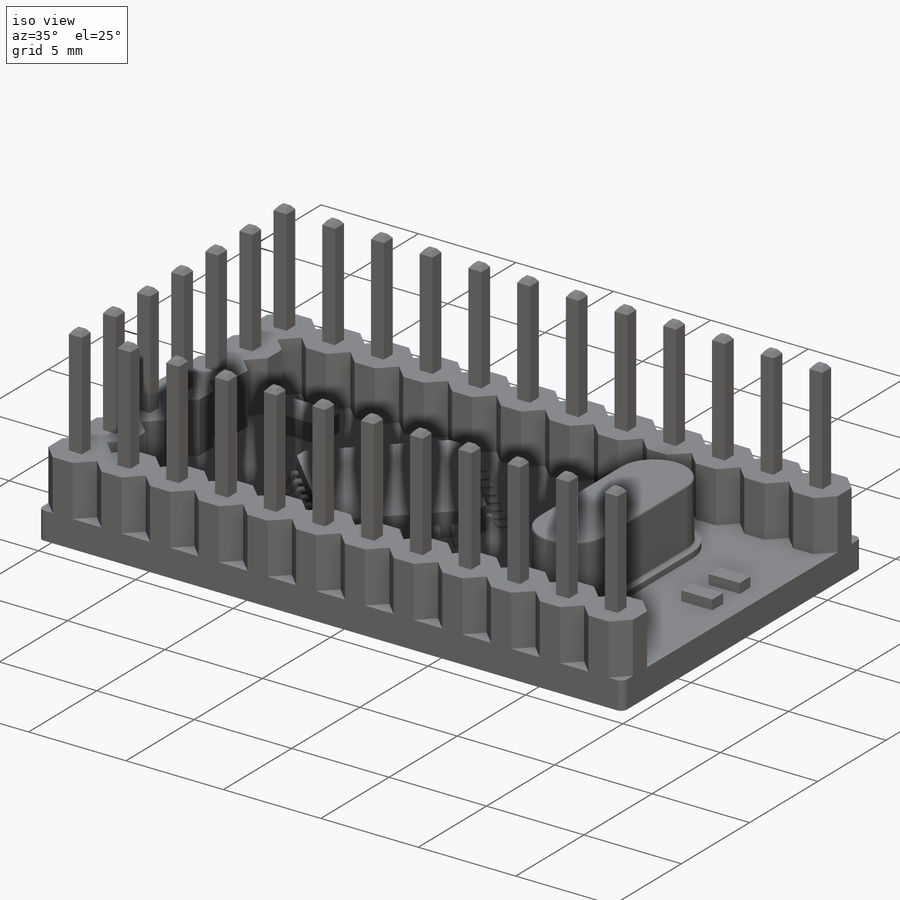
[diagram: iso view]
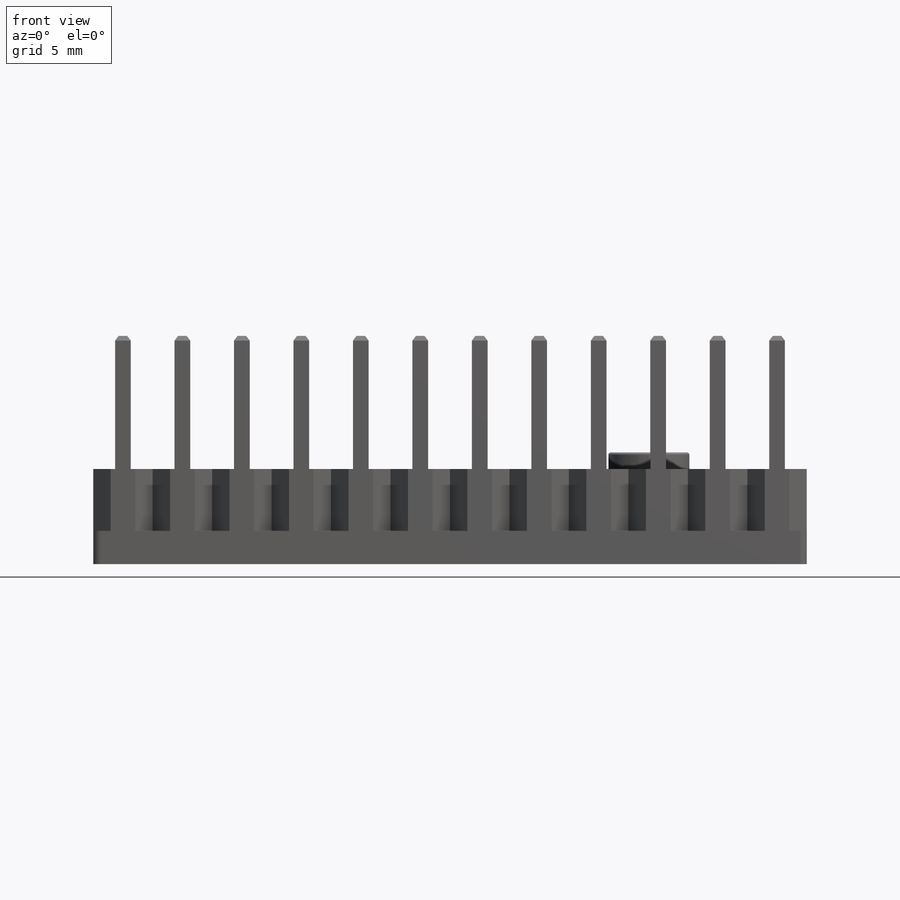
[diagram: front view]
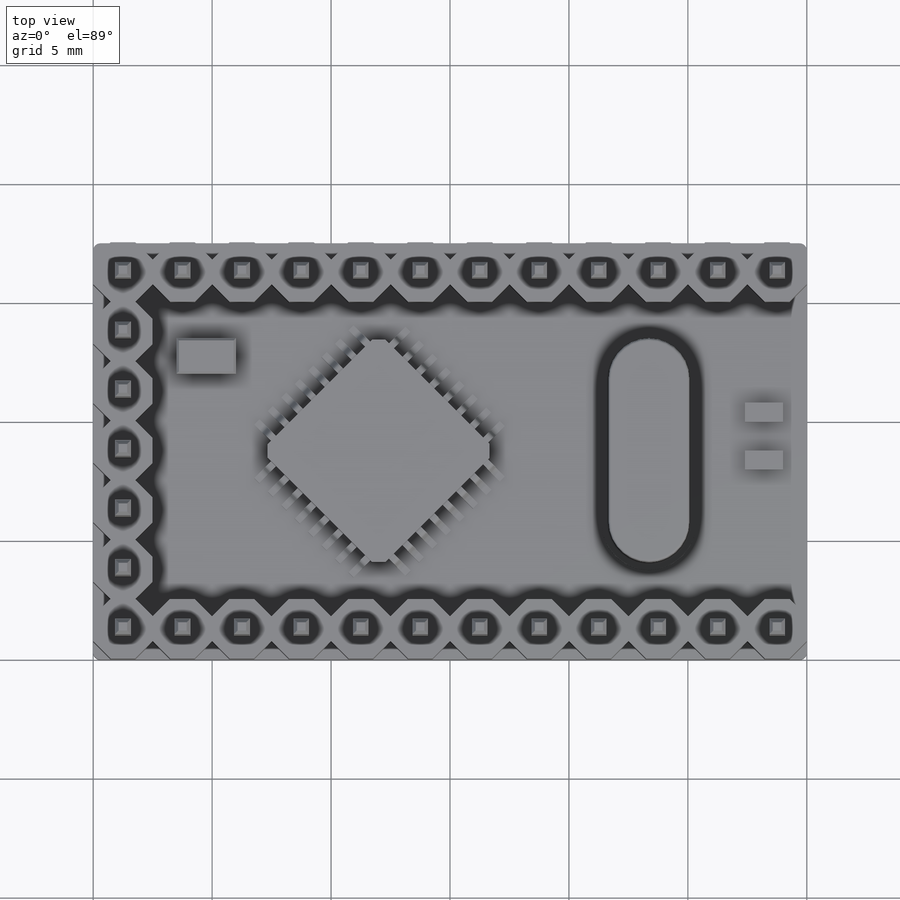
[diagram: top view]
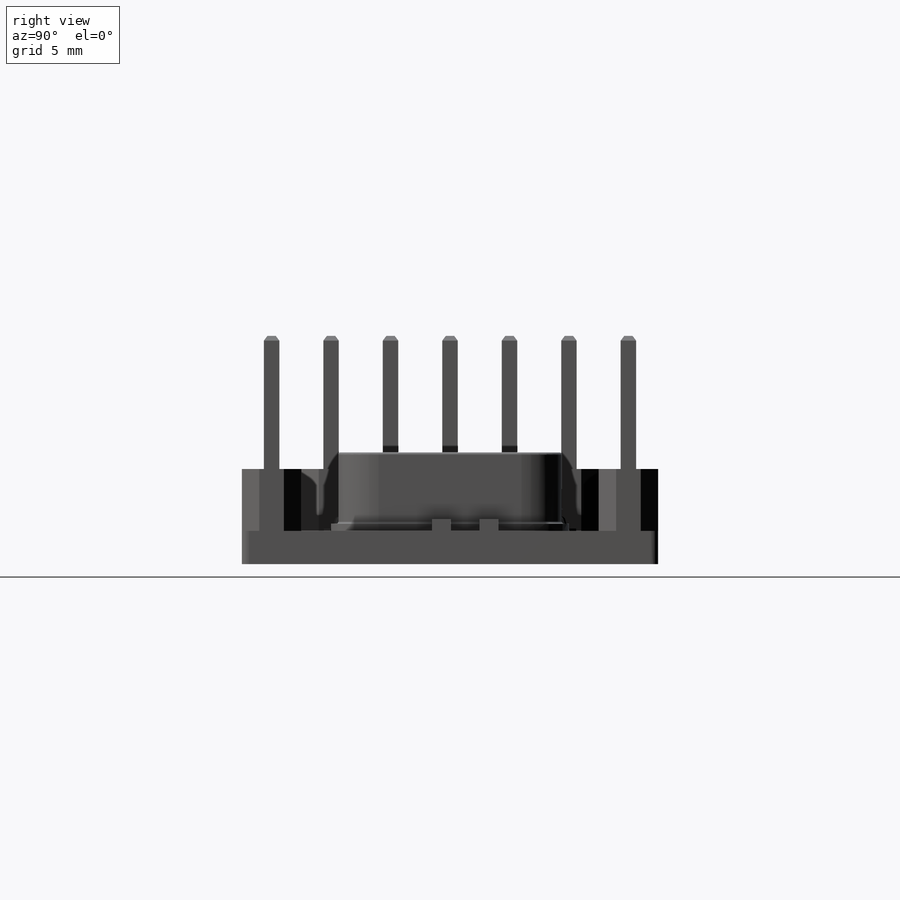
[diagram: right view]
SOLIDWORKS PART (.sldprt)
format: sldprt  version: not decoded by parser v0  size: 1,895,936 bytes
history: native  units: mm
features: sketch x12, extrude x10, plane x7, pattern_linear x4, chamfer x3, fillet x3, mirror x2, material x1 (+8 scaffold rows collapsed)
feature tree (50):
  scaffold x8  (default folders/planes/origin — collapsed)
  material  "材质 <未指定>"
  plane  "前视基准面"
  plane  "上视基准面"
  plane  "右视基准面"
  sketch  "草图1"  dims[c1.D1=~5.370779mm c1.D2=~9.074765mm c2.D1=30.0mm c2.D2=17.5mm]
  extrude  "凸台-拉伸1"  Depth=1.4mm
  sketch  "草图2"  dims[D1=~0.86903mm]
  extrude  "凸台-拉伸2"  Depth=2.6mm
  sketch  "草图4"  dims[c1.D2=2.5mm c1.D3=~0.755781mm c1.D4=~0.808536mm c2.D3=0.66mm c2.D4=0.65mm c2.D1=0.0mm]
  extrude  "凸台-拉伸3"  Depth=5.6mm
  chamfer  "倒角1"  Distance=0.2mm Angle=37deg
  pattern_linear  "阵列(线性)3"  Count1=12 Count2=2 Spacing1=2.5mm Spacing2=15mm
  sketch  "草图7"  dims[D1=~7.53355mm]
  sketch  "草图9"  dims[c1.D1=~3.677016mm c1.D2=~3.426679mm c2.D1=7.0mm c2.D2=7.0mm c2.D3=12.0mm]
  extrude  "凸台-拉伸4"  Depth=1.2mm
  chamfer  "倒角2"  Distance=0.4mm Angle=45deg
  plane  "基准面2"  Offset=0.5mm
  sketch  "草图12"  dims[D5=0.2mm D1=1.0mm D2=0.1mm D3=~0.304987mm D4=0.5mm D7=0.1mm D6=0.1mm]
  extrude  "凸台-拉伸5"  Depth=0.3mm
  pattern_linear  "阵列(线性)4"  Count1=8 Count2=1 Spacing1=0.8mm Spacing2=14.5mm
  plane  "基准面4"  Offset=0.5mm
  sketch  "草图13"  dims[D5=0.2mm D1=0.1mm D2=1.0mm D3=0.3mm D4=0.5mm D7=0.1mm D6=0.1mm]
  extrude  "凸台-拉伸6"  Depth=0.3mm
  pattern_linear  "阵列(线性)5"  Count1=8 Count2=1 Spacing1=0.8mm Spacing2=14.5mm
  plane  "基准面5"  Offset=3.5mm
  plane  "基准面6"  Offset=3.5mm
  mirror  "镜向1"
  mirror  "镜向2"
  sketch  "草图14"  dims[D2=2.0mm D1=6.0mm]
  extrude  "凸台-拉伸7"  Depth=0.3mm
  sketch  "草图15"  dims[D1=0.3mm]
  extrude  "凸台-拉伸8"  Depth=3mm
  fillet  "圆角1"  Radius=0.1mm
  fillet  "圆角2"  Radius=0.1mm
  pattern_linear  "阵列(线性)6"  Count1=6 Count2=1 Spacing1=2.5mm Spacing2=14.5mm
  sketch  "草图16"  dims[c1.D1=~1.811783mm c1.D2=~2.253682mm c2.D1=1.5mm c2.D2=2.5mm c2.D3=4.0mm c2.D4=3.5mm]
  extrude  "凸台-拉伸9"  Depth=1mm
  chamfer  "倒角3"  Distance=0.1mm Angle=45deg
  sketch  "草图17"  dims[c1.D1=~0.992771mm c1.D2=~1.890992mm c2.D1=~2.002006mm c2.D2=~2.018435mm c3.D1=1.6mm c3.D2=0.8mm c3.D3=1.0mm c3.D4=2.0]
  extrude  "凸台-拉伸10"  Depth=0.5mm
  sketch  "草图18"  dims[D1=~7.859261mm]
  fillet  "圆角3"  Radius=0.3mm
decode coverage: 32 of 34 modeling features carry decoded parameters
note: ~ marks probable driven/reference dimensions
note: suppression state not decoded; provenance and decode notes live in map.json
